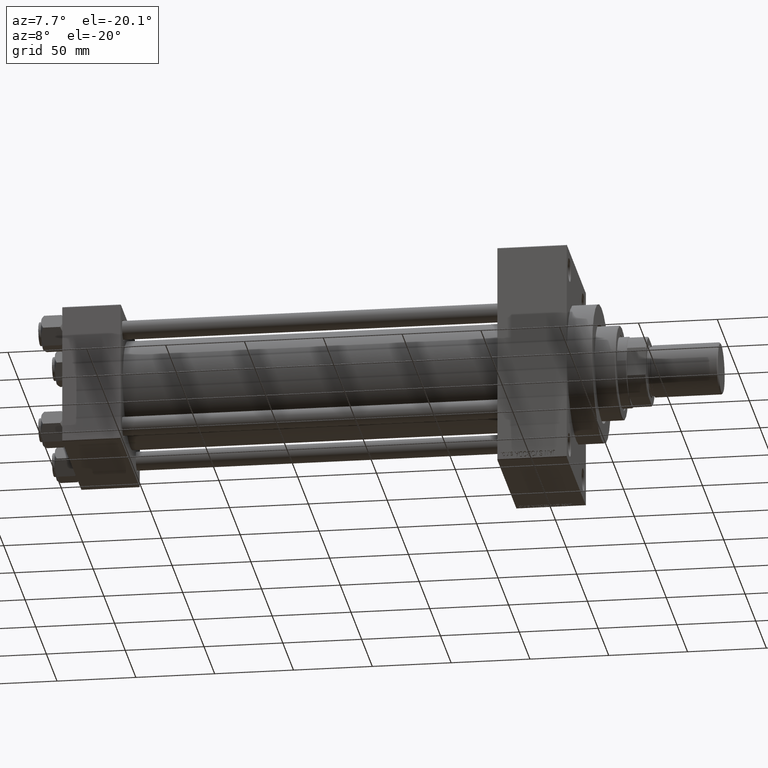
[diagram: clean part render]
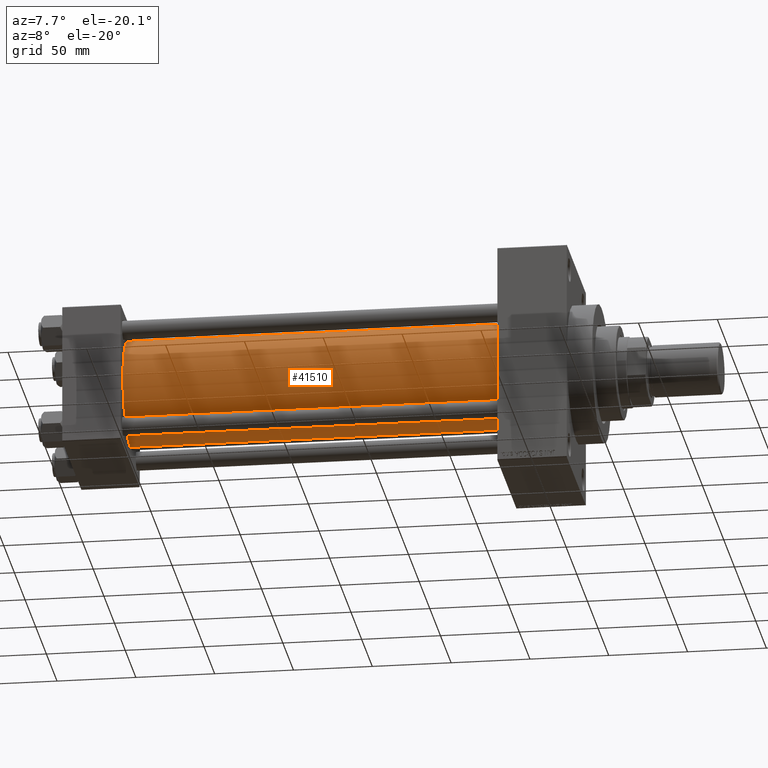
[diagram: same view with one face highlighted and labeled with its STEP entity id]
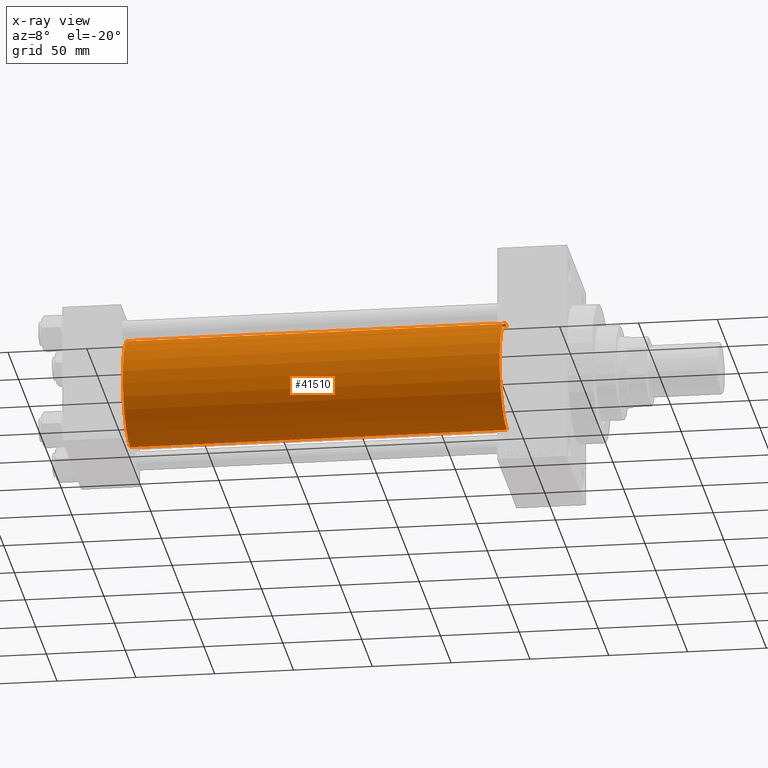
[diagram: x-ray of the same camera — body ghosted, the highlighted face saturated]
A machine part, auxiliary view. The second image highlights one B-rep face of the part: STEP entity #41510.
The next image is the same camera in x-ray: the body ghosted, the highlighted face saturated — about 0% of this face is hidden behind the body in this view.
In plain terms, the highlighted cylindrical surface (partial cylindrical patch) has radius 34.5 mm, axis along (-1, -0, -0).
Its self-contained STEP definition (entity closure, byte-faithful):
#2850 = CARTESIAN_POINT ( 'NONE',  ( 37.00000000000000711, 1.622946243093157097E-15, -34.50000000000000000 ) ) ;
#6318 = CARTESIAN_POINT ( 'NONE',  ( 275.9999999999999432, -2.602085213965210642E-15, 0.000000000000000000 ) ) ;
#7265 = CIRCLE ( 'NONE', #24985, 34.50000000000000000 ) ;
#8756 = DIRECTION ( 'NONE',  ( -1.000000000000000000, -0.000000000000000000, -0.000000000000000000 ) ) ;
#9008 = ORIENTED_EDGE ( 'NONE', *, *, #43487, .F. ) ;
#9927 = VECTOR ( 'NONE', #29640, 1000.000000000000000 ) ;
#10158 = EDGE_CURVE ( 'NONE', #32257, #14996, #29014, .T. ) ;
#13061 = DIRECTION ( 'NONE',  ( 0.000000000000000000, 0.000000000000000000, -1.000000000000000000 ) ) ;
#13880 = ORIENTED_EDGE ( 'NONE', *, *, #45417, .T. ) ;
#14996 = VERTEX_POINT ( 'NONE', #2850 ) ;
#16788 = CARTESIAN_POINT ( 'NONE',  ( 37.00000000000000711, -2.602085213965210642E-15, 0.000000000000000000 ) ) ;
#17595 = CARTESIAN_POINT ( 'NONE',  ( 275.9999999999999432, 1.622946243093157097E-15, -34.50000000000000000 ) ) ;
#17642 = DIRECTION ( 'NONE',  ( 1.000000000000000000, 0.000000000000000000, 0.000000000000000000 ) ) ;
#18378 = CARTESIAN_POINT ( 'NONE',  ( 275.9999999999999432, 1.622946243093157097E-15, -34.50000000000000000 ) ) ;
#18675 = EDGE_CURVE ( 'NONE', #43752, #26476, #7265, .T. ) ;
#19526 = EDGE_LOOP ( 'NONE', ( #9008, #38403, #13880, #33977 ) ) ;
#19537 = VECTOR ( 'NONE', #25119, 1000.000000000000000 ) ;
#20082 = CARTESIAN_POINT ( 'NONE',  ( 275.9999999999999432, -2.602085213965210642E-15, 0.000000000000000000 ) ) ;
#20158 = CARTESIAN_POINT ( 'NONE',  ( 275.9999999999999432, -2.602085213965210642E-15, 34.50000000000000000 ) ) ;
#23308 = DIRECTION ( 'NONE',  ( 0.000000000000000000, 0.000000000000000000, 1.000000000000000000 ) ) ;
#23777 = DIRECTION ( 'NONE',  ( 1.000000000000000000, -0.000000000000000000, 0.000000000000000000 ) ) ;
#24985 = AXIS2_PLACEMENT_3D ( 'NONE', #6318, #17642, #13061 ) ;
#25119 = DIRECTION ( 'NONE',  ( -1.000000000000000000, -0.000000000000000000, -0.000000000000000000 ) ) ;
#25721 = AXIS2_PLACEMENT_3D ( 'NONE', #20082, #8756, #45381 ) ;
#26476 = VERTEX_POINT ( 'NONE', #17595 ) ;
#29014 = CIRCLE ( 'NONE', #35977, 34.50000000000000000 ) ;
#29640 = DIRECTION ( 'NONE',  ( -1.000000000000000000, -0.000000000000000000, -0.000000000000000000 ) ) ;
#30679 = CYLINDRICAL_SURFACE ( 'NONE', #25721, 34.50000000000000000 ) ;
#32257 = VERTEX_POINT ( 'NONE', #45085 ) ;
#33977 = ORIENTED_EDGE ( 'NONE', *, *, #10158, .T. ) ;
#35977 = AXIS2_PLACEMENT_3D ( 'NONE', #16788, #23777, #23308 ) ;
#36640 = CARTESIAN_POINT ( 'NONE',  ( 275.9999999999999432, -2.602085213965210642E-15, 34.50000000000000000 ) ) ;
#37928 = FACE_OUTER_BOUND ( 'NONE', #19526, .T. ) ;
#38403 = ORIENTED_EDGE ( 'NONE', *, *, #18675, .F. ) ;
#40251 = LINE ( 'NONE', #36640, #9927 ) ;
#41510 = ADVANCED_FACE ( 'NONE', ( #37928 ), #30679, .T. ) ;
#43487 = EDGE_CURVE ( 'NONE', #26476, #14996, #43916, .T. ) ;
#43752 = VERTEX_POINT ( 'NONE', #20158 ) ;
#43916 = LINE ( 'NONE', #18378, #19537 ) ;
#45085 = CARTESIAN_POINT ( 'NONE',  ( 37.00000000000000711, -2.602085213965210642E-15, 34.50000000000000000 ) ) ;
#45381 = DIRECTION ( 'NONE',  ( 0.000000000000000000, 0.000000000000000000, 1.000000000000000000 ) ) ;
#45417 = EDGE_CURVE ( 'NONE', #43752, #32257, #40251, .T. ) ;